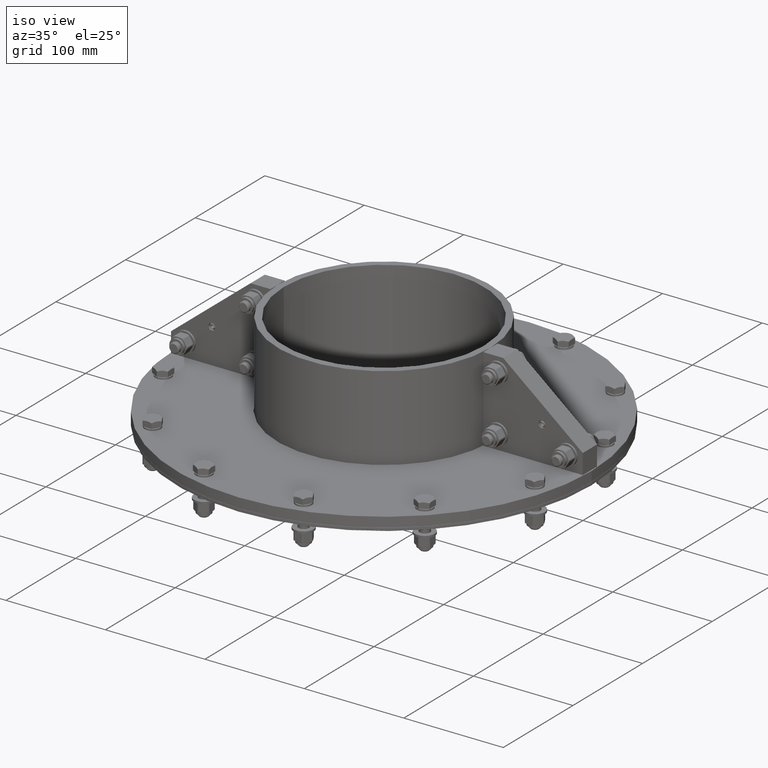
[diagram: clean part render]
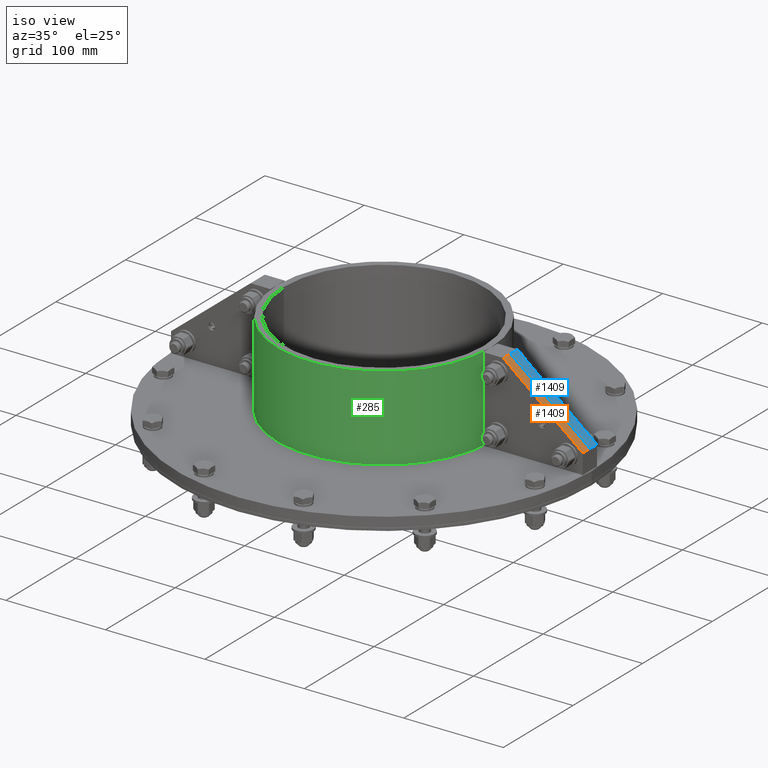
[diagram: same view with three faces highlighted in distinct colors, each labeled with its STEP entity id]
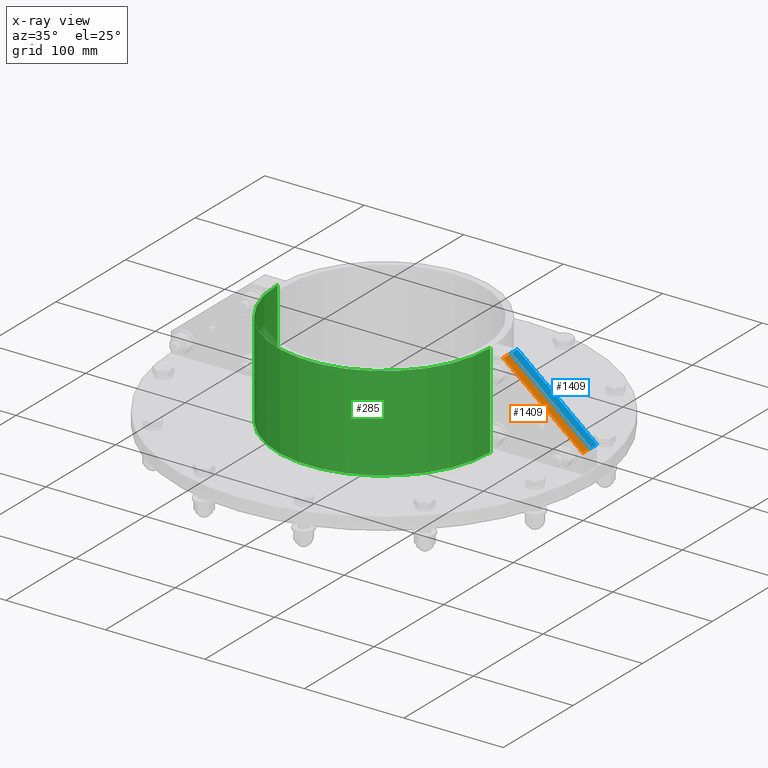
[diagram: x-ray of the same camera — body ghosted, the three highlighted faces saturated]
A machine part, iso view with three faces highlighted in distinct colors.
The next image is the same camera in x-ray (body ghosted, the three faces saturated) — at least one of them is partly hidden behind the body in this view.
Their STEP definitions:

[orange] entity #1409 — the highlighted planar face has unit normal (0.6306, 0, 0.7761).
#1318=CARTESIAN_POINT('',(20.0,85.0,-5.0));
#1319=VERTEX_POINT('',#1318);
#1326=CARTESIAN_POINT('',(100.0,20.000000000000018,-5.0));
#1327=VERTEX_POINT('',#1326);
#1328=CARTESIAN_POINT('',(100.0,20.000000000000014,-5.0));
#1329=DIRECTION('',(-0.776114000116266,0.630592625094466,0.0));
#1330=VECTOR('',#1329,103.0776406404415);
#1331=LINE('',#1328,#1330);
#1332=EDGE_CURVE('',#1327,#1319,#1331,.T.);
#1362=CARTESIAN_POINT('',(20.0,85.0,5.0));
#1363=VERTEX_POINT('',#1362);
#1370=CARTESIAN_POINT('',(20.0,85.0,5.0));
#1371=DIRECTION('',(0.0,0.0,-1.0));
#1372=VECTOR('',#1371,10.0);
#1373=LINE('',#1370,#1372);
#1374=EDGE_CURVE('',#1363,#1319,#1373,.T.);
#1386=CARTESIAN_POINT('',(20.0,85.0,0.0));
#1387=DIRECTION('',(0.630592625094466,0.776114000116266,0.0));
#1388=DIRECTION('',(0.0,0.0,-1.0));
#1389=AXIS2_PLACEMENT_3D('',#1386,#1387,#1388);
#1390=PLANE('',#1389);
#1391=CARTESIAN_POINT('',(100.0,20.000000000000018,5.0));
#1392=VERTEX_POINT('',#1391);
#1393=CARTESIAN_POINT('',(20.0,85.0,5.0));
#1394=DIRECTION('',(0.776114000116266,-0.630592625094466,0.0));
#1395=VECTOR('',#1394,103.0776406404415);
#1396=LINE('',#1393,#1395);
#1397=EDGE_CURVE('',#1363,#1392,#1396,.T.);
#1398=ORIENTED_EDGE('',*,*,#1397,.T.);
#1399=CARTESIAN_POINT('',(100.0,20.000000000000018,5.0));
#1400=DIRECTION('',(0.0,0.0,-1.0));
#1401=VECTOR('',#1400,10.0);
#1402=LINE('',#1399,#1401);
#1403=EDGE_CURVE('',#1392,#1327,#1402,.T.);
#1404=ORIENTED_EDGE('',*,*,#1403,.T.);
#1405=ORIENTED_EDGE('',*,*,#1332,.T.);
#1406=ORIENTED_EDGE('',*,*,#1374,.F.);
#1407=EDGE_LOOP('',(#1398,#1404,#1405,#1406));
#1408=FACE_OUTER_BOUND('',#1407,.T.);
#1409=ADVANCED_FACE('',(#1408),#1390,.T.);

[blue] entity #1409 — the highlighted planar face has unit normal (0.6306, 0, 0.7761).
#1318=CARTESIAN_POINT('',(20.0,85.0,-5.0));
#1319=VERTEX_POINT('',#1318);
#1326=CARTESIAN_POINT('',(100.0,20.000000000000018,-5.0));
#1327=VERTEX_POINT('',#1326);
#1328=CARTESIAN_POINT('',(100.0,20.000000000000014,-5.0));
#1329=DIRECTION('',(-0.776114000116266,0.630592625094466,0.0));
#1330=VECTOR('',#1329,103.0776406404415);
#1331=LINE('',#1328,#1330);
#1332=EDGE_CURVE('',#1327,#1319,#1331,.T.);
#1362=CARTESIAN_POINT('',(20.0,85.0,5.0));
#1363=VERTEX_POINT('',#1362);
#1370=CARTESIAN_POINT('',(20.0,85.0,5.0));
#1371=DIRECTION('',(0.0,0.0,-1.0));
#1372=VECTOR('',#1371,10.0);
#1373=LINE('',#1370,#1372);
#1374=EDGE_CURVE('',#1363,#1319,#1373,.T.);
#1386=CARTESIAN_POINT('',(20.0,85.0,0.0));
#1387=DIRECTION('',(0.630592625094466,0.776114000116266,0.0));
#1388=DIRECTION('',(0.0,0.0,-1.0));
#1389=AXIS2_PLACEMENT_3D('',#1386,#1387,#1388);
#1390=PLANE('',#1389);
#1391=CARTESIAN_POINT('',(100.0,20.000000000000018,5.0));
#1392=VERTEX_POINT('',#1391);
#1393=CARTESIAN_POINT('',(20.0,85.0,5.0));
#1394=DIRECTION('',(0.776114000116266,-0.630592625094466,0.0));
#1395=VECTOR('',#1394,103.0776406404415);
#1396=LINE('',#1393,#1395);
#1397=EDGE_CURVE('',#1363,#1392,#1396,.T.);
#1398=ORIENTED_EDGE('',*,*,#1397,.T.);
#1399=CARTESIAN_POINT('',(100.0,20.000000000000018,5.0));
#1400=DIRECTION('',(0.0,0.0,-1.0));
#1401=VECTOR('',#1400,10.0);
#1402=LINE('',#1399,#1401);
#1403=EDGE_CURVE('',#1392,#1327,#1402,.T.);
#1404=ORIENTED_EDGE('',*,*,#1403,.T.);
#1405=ORIENTED_EDGE('',*,*,#1332,.T.);
#1406=ORIENTED_EDGE('',*,*,#1374,.F.);
#1407=EDGE_LOOP('',(#1398,#1404,#1405,#1406));
#1408=FACE_OUTER_BOUND('',#1407,.T.);
#1409=ADVANCED_FACE('',(#1408),#1390,.T.);

[green] entity #285 — the highlighted cylindrical surface (partial cylindrical patch) has radius 107 mm, axis along (0, 0, 1).
#151=CARTESIAN_POINT('',(106.99981308394889,0.2,95.0));
#152=VERTEX_POINT('',#151);
#153=CARTESIAN_POINT('',(106.99981308394889,0.2,0.0));
#154=VERTEX_POINT('',#153);
#155=CARTESIAN_POINT('',(106.99981308394889,0.2,95.0));
#156=DIRECTION('',(0.0,0.0,-1.0));
#157=VECTOR('',#156,95.0);
#158=LINE('',#155,#157);
#159=EDGE_CURVE('',#152,#154,#158,.T.);
#191=CARTESIAN_POINT('',(-106.99981308394889,0.2,0.0));
#192=VERTEX_POINT('',#191);
#193=CARTESIAN_POINT('',(-106.99981308394889,0.2,95.0));
#194=VERTEX_POINT('',#193);
#195=CARTESIAN_POINT('',(-106.99981308394889,0.2,0.0));
#196=DIRECTION('',(0.0,0.0,1.0));
#197=VECTOR('',#196,95.0);
#198=LINE('',#195,#197);
#199=EDGE_CURVE('',#192,#194,#198,.T.);
#232=CARTESIAN_POINT('',(0.0,0.0,0.0));
#233=DIRECTION('',(0.0,0.0,-1.0));
#234=DIRECTION('',(-1.0,0.0,0.0));
#235=AXIS2_PLACEMENT_3D('',#232,#233,#234);
#236=CIRCLE('',#235,107.00000000000001);
#237=EDGE_CURVE('',#192,#154,#236,.T.);
#268=CARTESIAN_POINT('',(0.0,0.0,0.0));
#269=DIRECTION('',(0.0,0.0,1.0));
#270=DIRECTION('',(-1.0,0.0,0.0));
#271=AXIS2_PLACEMENT_3D('',#268,#269,#270);
#272=CYLINDRICAL_SURFACE('',#271,107.00000000000001);
#273=ORIENTED_EDGE('',*,*,#199,.T.);
#274=CARTESIAN_POINT('',(0.0,0.0,95.0));
#275=DIRECTION('',(0.0,0.0,-1.0));
#276=DIRECTION('',(-1.0,0.0,0.0));
#277=AXIS2_PLACEMENT_3D('',#274,#275,#276);
#278=CIRCLE('',#277,107.00000000000001);
#279=EDGE_CURVE('',#194,#152,#278,.T.);
#280=ORIENTED_EDGE('',*,*,#279,.T.);
#281=ORIENTED_EDGE('',*,*,#159,.T.);
#282=ORIENTED_EDGE('',*,*,#237,.F.);
#283=EDGE_LOOP('',(#273,#280,#281,#282));
#284=FACE_OUTER_BOUND('',#283,.T.);
#285=ADVANCED_FACE('',(#284),#272,.T.);